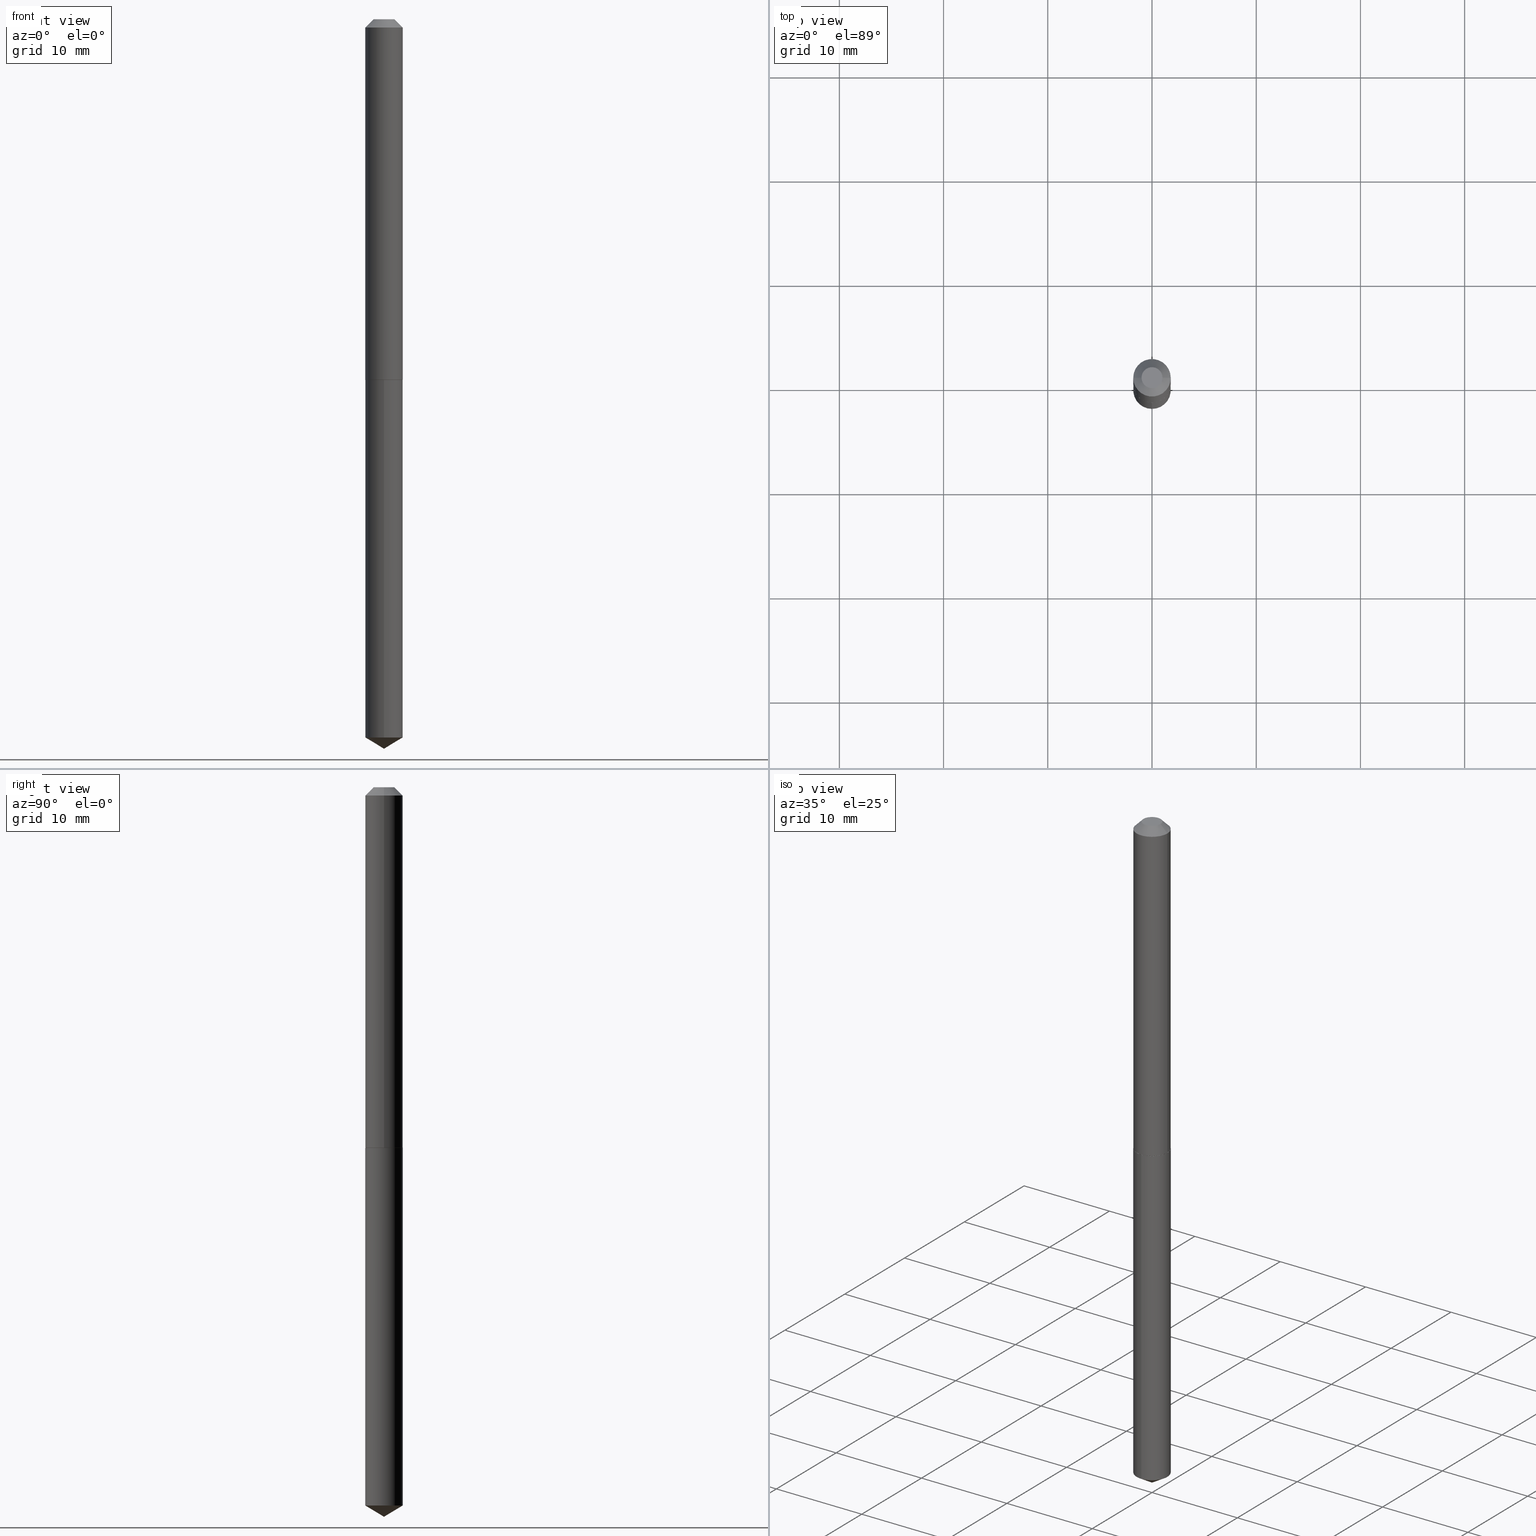
[diagram: canonical four-view strip — front | top / right | iso, engineering-drawing reading convention]
A machine part, canonical four-view strip (front | top / right | iso — engineering-drawing reading convention). The complete STEP part file that produces these views, byte-faithful:
ISO-10303-21;
HEADER;
FILE_DESCRIPTION (( 'STEP AP203' ),
    '1' );
FILE_NAME ('61072.STEP',
    '2024-04-23T03:12:56',
    ( '' ),
    ( '' ),
    'SwSTEP 2.0',
    'SolidWorks 2023',
    '' );
FILE_SCHEMA (( 'CONFIG_CONTROL_DESIGN' ));
ENDSEC;

DATA;
#1 = CIRCLE ( 'NONE', #370, 0.07084999999999999631 ) ;
#2 = SECURITY_CLASSIFICATION ( '', '', #58 ) ;
#3 = ORIENTED_EDGE ( 'NONE', *, *, #250, .T. ) ;
#4 = CC_DESIGN_DATE_AND_TIME_ASSIGNMENT ( #71, #160, ( #2 ) ) ;
#5 = CARTESIAN_POINT ( 'NONE',  ( 3.329994873382300355E-29, -4.754350139102710568E-15, -1.361699999999999910 ) ) ;
#6 = DIRECTION ( 'NONE',  ( -6.982962677686266711E-15, -1.000000000000000000, 3.468864327941571732E-15 ) ) ;
#7 = CARTESIAN_POINT ( 'NONE',  ( -1.167985862904637270E-47, 1.667574263899819573E-33, 4.776122516674677910E-19 ) ) ;
#8 = ADVANCED_FACE ( 'NONE', ( #150 ), #231, .T. ) ;
#9 = CARTESIAN_POINT ( 'NONE',  ( 3.331217607785391475E-29, -4.756095879772131283E-15, -1.362199999999999411 ) ) ;
#10 = ORIENTED_EDGE ( 'NONE', *, *, #250, .F. ) ;
#11 = DIRECTION ( 'NONE',  ( -2.445468806185136877E-29, 3.491481338843145188E-15, 1.000000000000000000 ) ) ;
#12 = VECTOR ( 'NONE', #245, 39.37007874015748143 ) ;
#13 = VERTEX_POINT ( 'NONE', #228 ) ;
#14 = VERTEX_POINT ( 'NONE', #221 ) ;
#15 = ORIENTED_EDGE ( 'NONE', *, *, #95, .T. ) ;
#16 = CC_DESIGN_PERSON_AND_ORGANIZATION_ASSIGNMENT ( #96, #64, ( #385 ) ) ;
#17 = LINE ( 'NONE', #293, #224 ) ;
#18 = VERTEX_POINT ( 'NONE', #386 ) ;
#19 = PERSON_AND_ORGANIZATION_ROLE ( 'creator' ) ;
#20 = FACE_OUTER_BOUND ( 'NONE', #288, .T. ) ;
#21 = VECTOR ( 'NONE', #299, 39.37007874015748143 ) ;
#22 = CYLINDRICAL_SURFACE ( 'NONE', #177, 0.07085000000000007958 ) ;
#23 = EDGE_CURVE ( 'NONE', #252, #306, #354, .T. ) ;
#24 = DIMENSIONAL_EXPONENTS ( 1.000000000000000000, 0.000000000000000000, 0.000000000000000000, 0.000000000000000000, 0.000000000000000000, 0.000000000000000000, 0.000000000000000000 ) ;
#25 = PERSON_AND_ORGANIZATION_ROLE ( 'design_owner' ) ;
#26 = AXIS2_PLACEMENT_3D ( 'NONE', #32, #190, #101 ) ;
#27 = COORDINATED_UNIVERSAL_TIME_OFFSET ( 5, 0, .BEHIND. ) ;
#28 = CARTESIAN_POINT ( 'NONE',  ( 0.07084999999999999631, -5.951750749809620639E-16, -0.03125000000000020123 ) ) ;
#29 = FACE_OUTER_BOUND ( 'NONE', #239, .T. ) ;
#30 = DIRECTION ( 'NONE',  ( -2.445468806185136597E-29, 3.491481338843145583E-15, 1.000000000000000000 ) ) ;
#31 = EDGE_CURVE ( 'NONE', #14, #92, #316, .T. ) ;
#32 = CARTESIAN_POINT ( 'NONE',  ( 3.331217607785391475E-29, -4.756095879772131283E-15, -1.362199999999999411 ) ) ;
#33 = CARTESIAN_POINT ( 'NONE',  ( -0.07035000000000024567, -4.253579837990788644E-15, -1.362199999999999411 ) ) ;
#34 = CARTESIAN_POINT ( 'NONE',  ( -5.839929314523186348E-48, 8.337871319499097864E-34, 2.388061258337338955E-19 ) ) ;
#35 = CALENDAR_DATE ( 2024, 22, 4 ) ;
#36 = LINE ( 'NONE', #42, #12 ) ;
#37 = AXIS2_PLACEMENT_3D ( 'NONE', #329, #303, #135 ) ;
#38 = LINE ( 'NONE', #251, #206 ) ;
#39 = COORDINATED_UNIVERSAL_TIME_OFFSET ( 5, 0, .BEHIND. ) ;
#40 = EDGE_CURVE ( 'NONE', #252, #141, #38, .T. ) ;
#41 = ORIENTED_EDGE ( 'NONE', *, *, #349, .F. ) ;
#42 = CARTESIAN_POINT ( 'NONE',  ( -0.07084999999999999631, 3.856341138752230066E-16, -0.03125000000000020123 ) ) ;
#43 = ORIENTED_EDGE ( 'NONE', *, *, #187, .T. ) ;
#44 =( NAMED_UNIT ( * ) SI_UNIT ( $, .STERADIAN. ) SOLID_ANGLE_UNIT ( ) );
#45 = AXIS2_PLACEMENT_3D ( 'NONE', #7, #256, #339 ) ;
#46 = APPROVAL_PERSON_ORGANIZATION ( #292, #234, #186 ) ;
#47 = EDGE_CURVE ( 'NONE', #279, #286, #271, .T. ) ;
#48 = APPLICATION_CONTEXT ( 'configuration controlled 3d designs of mechanical parts and assemblies' ) ;
#49 = CARTESIAN_POINT ( 'NONE',  ( -8.953980665478492260E-28, 1.278363260087393481E-13, 36.61417874015747742 ) ) ;
#50 = CARTESIAN_POINT ( 'NONE',  ( 3.331217607785392596E-29, -4.756095879772132072E-15, -1.362199999999999855 ) ) ;
#51 = LINE ( 'NONE', #197, #191 ) ;
#52 = CARTESIAN_POINT ( 'NONE',  ( -1.167985862904637270E-47, 1.667574263899819573E-33, 4.776122516674677910E-19 ) ) ;
#53 = ORIENTED_EDGE ( 'NONE', *, *, #389, .F. ) ;
#54 = AXIS2_PLACEMENT_3D ( 'NONE', #134, #243, #300 ) ;
#55 = ADVANCED_FACE ( 'NONE', ( #357 ), #104, .F. ) ;
#56 = EDGE_LOOP ( 'NONE', ( #380, #10, #262, #347 ) ) ;
#57 = EDGE_LOOP ( 'NONE', ( #3, #263 ) ) ;
#58 = SECURITY_CLASSIFICATION_LEVEL ( 'unclassified' ) ;
#59 = MANIFOLD_SOLID_BREP ( 'Body-Move/Copy2[2]', #241 ) ;
#60 = ORIENTED_EDGE ( 'NONE', *, *, #95, .F. ) ;
#61 = PERSON_AND_ORGANIZATION ( #103, #167 ) ;
#62 = MANIFOLD_SOLID_BREP ( 'Body-Move/Copy2[1]', #105 ) ;
#63 = AXIS2_PLACEMENT_3D ( 'NONE', #246, #30, #97 ) ;
#64 = PERSON_AND_ORGANIZATION_ROLE ( 'creator' ) ;
#65 = CC_DESIGN_PERSON_AND_ORGANIZATION_ASSIGNMENT ( #267, #319, ( #385 ) ) ;
#66 = DIRECTION ( 'NONE',  ( 0.7071067811867527420, -2.468850131084406312E-15, 0.7071067811863422925 ) ) ;
#67 = PERSON_AND_ORGANIZATION ( #103, #167 ) ;
#68 =( CONVERSION_BASED_UNIT ( 'INCH', #165 ) LENGTH_UNIT ( ) NAMED_UNIT ( #24 ) );
#69 = PLANE ( 'NONE',  #308 ) ;
#70 = CARTESIAN_POINT ( 'NONE',  ( 5.034195282860974170E-16, 0.07084999999999523623, -1.362200000000000077 ) ) ;
#71 = DATE_AND_TIME ( #364, #158 ) ;
#72 = VERTEX_POINT ( 'NONE', #70 ) ;
#73 = EDGE_CURVE ( 'NONE', #72, #92, #126, .T. ) ;
#74 = LOCAL_TIME ( 23, 12, 55.00000000000000000, #39 ) ;
#75 = AXIS2_PLACEMENT_3D ( 'NONE', #383, #107, #6 ) ;
#76 = DIRECTION ( 'NONE',  ( 1.000000000000000000, 0.000000000000000000, 0.000000000000000000 ) ) ;
#77 = SHAPE_DEFINITION_REPRESENTATION ( #346, #222 ) ;
#78 = ORIENTED_EDGE ( 'NONE', *, *, #229, .T. ) ;
#79 = EDGE_CURVE ( 'NONE', #368, #286, #36, .T. ) ;
#80 = DIRECTION ( 'NONE',  ( -6.982962677686265133E-15, -1.000000000000000000, 0.000000000000000000 ) ) ;
#81 = DIRECTION ( 'NONE',  ( -2.445468806185136597E-29, 3.491481338843145583E-15, 1.000000000000000000 ) ) ;
#82 = CIRCLE ( 'NONE', #289, 0.07035000000000024567 ) ;
#83 = LOCAL_TIME ( 23, 12, 55.00000000000000000, #27 ) ;
#84 = LINE ( 'NONE', #203, #361 ) ;
#85 = CARTESIAN_POINT ( 'NONE',  ( -4.947429057140386300E-16, -0.07085000000000474252, -1.362199999999999411 ) ) ;
#86 = ADVANCED_FACE ( 'NONE', ( #99 ), #219, .T. ) ;
#87 = AXIS2_PLACEMENT_3D ( 'NONE', #34, #356, #220 ) ;
#88 = CARTESIAN_POINT ( 'NONE',  ( 3.331217607785392596E-29, -4.756095879772132072E-15, -1.362199999999999855 ) ) ;
#89 = ORIENTED_EDGE ( 'NONE', *, *, #229, .F. ) ;
#90 = DIRECTION ( 'NONE',  ( -6.982962677686265133E-15, -1.000000000000000000, 0.000000000000000000 ) ) ;
#91 = PRODUCT_RELATED_PRODUCT_CATEGORY ( 'detail', '', ( #112 ) ) ;
#92 = VERTEX_POINT ( 'NONE', #85 ) ;
#93 = AXIS2_PLACEMENT_3D ( 'NONE', #258, #284, #80 ) ;
#94 = DIRECTION ( 'NONE',  ( -1.000000000000000000, 6.982962677686268288E-15, 0.000000000000000000 ) ) ;
#95 = EDGE_CURVE ( 'NONE', #306, #279, #51, .T. ) ;
#96 = PERSON_AND_ORGANIZATION ( #103, #167 ) ;
#97 = DIRECTION ( 'NONE',  ( 1.000000000000000000, -6.982962677686261189E-15, 0.000000000000000000 ) ) ;
#98 = CONICAL_SURFACE ( 'NONE', #63, 0.07085000000000016285, 0.7853981633977384913 ) ;
#99 = FACE_OUTER_BOUND ( 'NONE', #211, .T. ) ;
#100 = CARTESIAN_POINT ( 'NONE',  ( 7.642090019328601786E-31, -1.091087918388490144E-16, -0.03125000000000020123 ) ) ;
#101 = DIRECTION ( 'NONE',  ( 1.000000000000000000, -6.982962677686265922E-15, 4.876176775795935793E-29 ) ) ;
#102 = DIRECTION ( 'NONE',  ( -2.445494471656019895E-29, 3.491444584428052724E-15, 1.000000000000000000 ) ) ;
#103 = PERSON ( 'UNSPECIFIED', 'UNSPECIFIED', 'UNSPECIFIED', ('UNSPECIFIED'), ('UNSPECIFIED'), ('UNSPECIFIED') ) ;
#104 = PLANE ( 'NONE',  #26 ) ;
#105 = CLOSED_SHELL ( 'NONE', ( #8, #382, #144, #86, #225 ) ) ;
#106 = ORIENTED_EDGE ( 'NONE', *, *, #296, .T. ) ;
#107 = DIRECTION ( 'NONE',  ( -2.445494471656019615E-29, 3.491444584428053118E-15, 1.000000000000000000 ) ) ;
#108 = CARTESIAN_POINT ( 'NONE',  ( 3.331217607785392596E-29, -4.756095879772132072E-15, -1.362199999999999855 ) ) ;
#109 = EDGE_CURVE ( 'NONE', #279, #141, #157, .T. ) ;
#110 = APPLICATION_PROTOCOL_DEFINITION ( 'international standard', 'config_control_design', 1994, #136 ) ;
#111 = DIRECTION ( 'NONE',  ( 1.000000000000000000, -6.982962677686261189E-15, 0.000000000000000000 ) ) ;
#112 = PRODUCT ( '61072', '61072', '', ( #143 ) ) ;
#113 = DIRECTION ( 'NONE',  ( 2.445468806185136597E-29, -3.491481338843145583E-15, -1.000000000000000000 ) ) ;
#114 = DIRECTION ( 'NONE',  ( 1.000000000000000000, -6.982962677686273021E-15, 0.000000000000000000 ) ) ;
#115 = CONICAL_SURFACE ( 'NONE', #330, 65.52281426576885792, 1.029744258676657420 ) ;
#116 = CYLINDRICAL_SURFACE ( 'NONE', #237, 0.07085000000000007958 ) ;
#117 = FACE_OUTER_BOUND ( 'NONE', #240, .T. ) ;
#118 = EDGE_LOOP ( 'NONE', ( #315, #41 ) ) ;
#119 = ORIENTED_EDGE ( 'NONE', *, *, #40, .T. ) ;
#120 = CARTESIAN_POINT ( 'NONE',  ( 0.03959999999999999631, -4.334253978463574315E-16, 4.776122516699494480E-19 ) ) ;
#121 = ADVANCED_FACE ( 'NONE', ( #367 ), #326, .T. ) ;
#122 = EDGE_LOOP ( 'NONE', ( #60, #377, #119, #336 ) ) ;
#123 = CARTESIAN_POINT ( 'NONE',  ( 5.034195282860641863E-16, 0.07084999999999523623, -1.362200000000000077 ) ) ;
#124 = ORIENTED_EDGE ( 'NONE', *, *, #133, .T. ) ;
#125 = DIRECTION ( 'NONE',  ( -5.985567269335953901E-15, -0.8571673007021120005, 0.5150380749100547106 ) ) ;
#126 = CIRCLE ( 'NONE', #37, 0.07084999999999999631 ) ;
#127 = VECTOR ( 'NONE', #366, 39.37007874015748143 ) ;
#128 = APPLICATION_PROTOCOL_DEFINITION ( 'international standard', 'config_control_design', 1994, #48 ) ;
#129 = CALENDAR_DATE ( 2024, 22, 4 ) ;
#130 = CARTESIAN_POINT ( 'NONE',  ( 3.329994873382300355E-29, -4.754350139102710568E-15, -1.361699999999999910 ) ) ;
#131 = VECTOR ( 'NONE', #184, 39.37007874015748143 ) ;
#132 = DATE_AND_TIME ( #129, #201 ) ;
#133 = EDGE_CURVE ( 'NONE', #14, #18, #146, .T. ) ;
#134 = CARTESIAN_POINT ( 'NONE',  ( 7.642090019328601786E-31, -1.091087918388490144E-16, -0.03125000000000020123 ) ) ;
#135 = DIRECTION ( 'NONE',  ( -6.982962677686265133E-15, -1.000000000000000000, 3.855819327684210983E-15 ) ) ;
#136 = APPLICATION_CONTEXT ( 'configuration controlled 3d designs of mechanical parts and assemblies' ) ;
#137 = ORIENTED_EDGE ( 'NONE', *, *, #345, .F. ) ;
#138 = ADVANCED_FACE ( 'NONE', ( #117 ), #253, .T. ) ;
#139 =( LENGTH_UNIT ( ) NAMED_UNIT ( * ) SI_UNIT ( $, .METRE. ) );
#140 = ORIENTED_EDGE ( 'NONE', *, *, #133, .F. ) ;
#141 = VERTEX_POINT ( 'NONE', #309 ) ;
#142 = AXIS2_PLACEMENT_3D ( 'NONE', #353, #344, #90 ) ;
#143 = MECHANICAL_CONTEXT ( 'NONE', #136, 'mechanical' ) ;
#144 = ADVANCED_FACE ( 'NONE', ( #342 ), #115, .T. ) ;
#145 = DIRECTION ( 'NONE',  ( -0.7071067811867527420, 7.493145998871095689E-15, 0.7071067811863422925 ) ) ;
#146 = CIRCLE ( 'NONE', #93, 0.07084999999999999631 ) ;
#147 = DIRECTION ( 'NONE',  ( -2.445468806185136597E-29, 3.491481338843145583E-15, 1.000000000000000000 ) ) ;
#148 = EDGE_LOOP ( 'NONE', ( #53, #373, #175 ) ) ;
#149 = EDGE_CURVE ( 'NONE', #235, #368, #152, .T. ) ;
#150 = FACE_OUTER_BOUND ( 'NONE', #227, .T. ) ;
#151 = CALENDAR_DATE ( 2024, 22, 4 ) ;
#152 = CIRCLE ( 'NONE', #45, 0.03959999999999999631 ) ;
#153 = ORIENTED_EDGE ( 'NONE', *, *, #345, .T. ) ;
#154 = DIRECTION ( 'NONE',  ( -2.445468806185136597E-29, 3.491481338843145583E-15, 1.000000000000000000 ) ) ;
#155 = APPROVAL_STATUS ( 'not_yet_approved' ) ;
#156 = CC_DESIGN_PERSON_AND_ORGANIZATION_ASSIGNMENT ( #214, #25, ( #112 ) ) ;
#157 = CIRCLE ( 'NONE', #375, 0.07085000000000016285 ) ;
#158 = LOCAL_TIME ( 23, 12, 55.00000000000000000, #304 ) ;
#159 = DATE_AND_TIME ( #182, #178 ) ;
#160 = DATE_TIME_ROLE ( 'classification_date' ) ;
#161 = CARTESIAN_POINT ( 'NONE',  ( 7.642090019328601786E-31, -1.091087918388490144E-16, -0.03125000000000020123 ) ) ;
#162 = EDGE_CURVE ( 'NONE', #205, #286, #280, .T. ) ;
#163 = APPROVAL_STATUS ( 'not_yet_approved' ) ;
#164 = APPROVAL_DATE_TIME ( #301, #334 ) ;
#165 = LENGTH_MEASURE_WITH_UNIT ( LENGTH_MEASURE( 0.02539999999999999897 ), #139 );
#166 = DIRECTION ( 'NONE',  ( -6.982962677686265133E-15, -1.000000000000000000, 3.855819327684210983E-15 ) ) ;
#167 = ORGANIZATION ( 'UNSPECIFIED', 'UNSPECIFIED', '' ) ;
#168 = DIRECTION ( 'NONE',  ( -2.445494471656019615E-29, 3.491444584428053118E-15, 1.000000000000000000 ) ) ;
#169 = ORIENTED_EDGE ( 'NONE', *, *, #79, .F. ) ;
#170 = ORIENTED_EDGE ( 'NONE', *, *, #23, .T. ) ;
#171 = ORIENTED_EDGE ( 'NONE', *, *, #181, .F. ) ;
#172 = CARTESIAN_POINT ( 'NONE',  ( -0.07085000000000016285, -4.250930610816678232E-15, -1.361699999999999910 ) ) ;
#173 = ORIENTED_EDGE ( 'NONE', *, *, #389, .T. ) ;
#174 = DIRECTION ( 'NONE',  ( -2.445494471656019615E-29, 3.491444584428053118E-15, 1.000000000000000000 ) ) ;
#175 = ORIENTED_EDGE ( 'NONE', *, *, #187, .F. ) ;
#176 = PERSON_AND_ORGANIZATION ( #103, #167 ) ;
#177 = AXIS2_PLACEMENT_3D ( 'NONE', #242, #154, #268 ) ;
#178 = LOCAL_TIME ( 23, 12, 55.00000000000000000, #325 ) ;
#179 = APPROVAL_DATE_TIME ( #132, #202 ) ;
#180 = DIRECTION ( 'NONE',  ( -2.445494471656019615E-29, 3.491444584428053118E-15, 1.000000000000000000 ) ) ;
#181 = EDGE_CURVE ( 'NONE', #18, #72, #351, .T. ) ;
#182 = CALENDAR_DATE ( 2024, 22, 4 ) ;
#183 = DIRECTION ( 'NONE',  ( 6.982962677686265922E-15, 1.000000000000000000, -3.491444584428052724E-15 ) ) ;
#184 = DIRECTION ( 'NONE',  ( -2.445494471656019895E-29, 3.491444584428052724E-15, 1.000000000000000000 ) ) ;
#185 = CIRCLE ( 'NONE', #274, 0.07084999999999999631 ) ;
#186 = APPROVAL_ROLE ( '' ) ;
#187 = EDGE_CURVE ( 'NONE', #18, #14, #337, .T. ) ;
#188 = DESIGN_CONTEXT ( 'detailed design', #48, 'design' ) ;
#189 = CARTESIAN_POINT ( 'NONE',  ( 6.739538827579076702E-29, -9.622072130225270462E-15, -2.755900000000000016 ) ) ;
#190 = DIRECTION ( 'NONE',  ( -2.438088387897960049E-29, 3.491481338843145188E-15, 1.000000000000000000 ) ) ;
#191 = VECTOR ( 'NONE', #145, 39.37007874015748143 ) ;
#192 = CC_DESIGN_APPROVAL ( #202, ( #362 ) ) ;
#193 = LINE ( 'NONE', #189, #127 ) ;
#194 = APPROVAL_ROLE ( '' ) ;
#195 = ORIENTED_EDGE ( 'NONE', *, *, #109, .T. ) ;
#196 = ADVANCED_FACE ( 'NONE', ( #270 ), #217, .T. ) ;
#197 = CARTESIAN_POINT ( 'NONE',  ( -0.07085000000000016285, -4.250930610816678232E-15, -1.361699999999999910 ) ) ;
#198 = EDGE_LOOP ( 'NONE', ( #311, #233 ) ) ;
#199 = DIRECTION ( 'NONE',  ( 1.000000000000000000, -6.982962677686261189E-15, 0.000000000000000000 ) ) ;
#200 = DIRECTION ( 'NONE',  ( -2.445468806185136597E-29, 3.491481338843145583E-15, 1.000000000000000000 ) ) ;
#201 = LOCAL_TIME ( 23, 12, 55.00000000000000000, #238 ) ;
#202 = APPROVAL ( #350, 'UNSPECIFIED' ) ;
#203 = CARTESIAN_POINT ( 'NONE',  ( 6.739468291427951643E-29, -9.622172263953749861E-15, -2.755900000000000016 ) ) ;
#204 = ORIENTED_EDGE ( 'NONE', *, *, #355, .F. ) ;
#205 = VERTEX_POINT ( 'NONE', #285 ) ;
#206 = VECTOR ( 'NONE', #66, 39.37007874015748143 ) ;
#207 = AXIS2_PLACEMENT_3D ( 'NONE', #223, #331, #76 ) ;
#208 = DIRECTION ( 'NONE',  ( 2.445494471656019615E-29, -3.491444584428052724E-15, -1.000000000000000000 ) ) ;
#209 = ORIENTED_EDGE ( 'NONE', *, *, #162, .F. ) ;
#210 = LINE ( 'NONE', #28, #21 ) ;
#211 = EDGE_LOOP ( 'NONE', ( #171, #43, #281, #236 ) ) ;
#212 = VECTOR ( 'NONE', #249, 39.37007874015748143 ) ;
#213 = ADVANCED_FACE ( 'NONE', ( #215 ), #98, .T. ) ;
#214 = PERSON_AND_ORGANIZATION ( #103, #167 ) ;
#215 = FACE_OUTER_BOUND ( 'NONE', #122, .T. ) ;
#216 = ADVANCED_FACE ( 'NONE', ( #302 ), #323, .F. ) ;
#217 = CONICAL_SURFACE ( 'NONE', #384, 0.07084999999999999631, 0.7853981633974452814 ) ;
#218 = CC_DESIGN_APPROVAL ( #334, ( #2 ) ) ;
#219 = CYLINDRICAL_SURFACE ( 'NONE', #265, 0.07084999999999999631 ) ;
#220 = DIRECTION ( 'NONE',  ( -1.000000000000000000, 6.982962677686265922E-15, -4.876176775795935793E-29 ) ) ;
#221 = CARTESIAN_POINT ( 'NONE',  ( -4.947429057140053992E-16, -0.07085000000000944709, -2.713329025141897777 ) ) ;
#222 = ADVANCED_BREP_SHAPE_REPRESENTATION ( '61072', ( #62, #59, #207 ), #266 ) ;
#223 = CARTESIAN_POINT ( 'NONE',  ( 0.000000000000000000, 0.000000000000000000, 0.000000000000000000 ) ) ;
#224 = VECTOR ( 'NONE', #11, 39.37007874015748143 ) ;
#225 = ADVANCED_FACE ( 'NONE', ( #328 ), #69, .F. ) ;
#226 = PERSON_AND_ORGANIZATION_ROLE ( 'classification_officer' ) ;
#227 = EDGE_LOOP ( 'NONE', ( #124, #260, #204, #277 ) ) ;
#228 = CARTESIAN_POINT ( 'NONE',  ( 6.739538214436825030E-29, -9.622072130225270462E-15, -2.755900000000000016 ) ) ;
#229 = EDGE_CURVE ( 'NONE', #141, #205, #17, .T. ) ;
#230 = VECTOR ( 'NONE', #102, 39.37007874015748143 ) ;
#231 = CYLINDRICAL_SURFACE ( 'NONE', #305, 0.07084999999999999631 ) ;
#232 = DIRECTION ( 'NONE',  ( -1.000000000000000000, 6.982962677686268288E-15, 0.000000000000000000 ) ) ;
#233 = ORIENTED_EDGE ( 'NONE', *, *, #73, .T. ) ;
#234 = APPROVAL ( #155, 'UNSPECIFIED' ) ;
#235 = VERTEX_POINT ( 'NONE', #120 ) ;
#236 = ORIENTED_EDGE ( 'NONE', *, *, #73, .F. ) ;
#237 = AXIS2_PLACEMENT_3D ( 'NONE', #261, #372, #244 ) ;
#238 = COORDINATED_UNIVERSAL_TIME_OFFSET ( 5, 0, .BEHIND. ) ;
#239 = EDGE_LOOP ( 'NONE', ( #273, #173, #140 ) ) ;
#240 = EDGE_LOOP ( 'NONE', ( #170, #15, #137, #321 ) ) ;
#241 = CLOSED_SHELL ( 'NONE', ( #196, #282, #138, #55, #213, #324, #121, #216 ) ) ;
#242 = CARTESIAN_POINT ( 'NONE',  ( 0.000000000000000000, 0.000000000000000000, 0.000000000000000000 ) ) ;
#243 = DIRECTION ( 'NONE',  ( -2.445468806185136597E-29, 3.491481338843145583E-15, 1.000000000000000000 ) ) ;
#244 = DIRECTION ( 'NONE',  ( 1.000000000000000000, -6.982962677686266711E-15, 4.876176775795935232E-29 ) ) ;
#245 = DIRECTION ( 'NONE',  ( -0.7071067811865453523, 2.468850131082234184E-15, -0.7071067811865496822 ) ) ;
#246 = CARTESIAN_POINT ( 'NONE',  ( 3.329994873382300355E-29, -4.754350139102710568E-15, -1.361699999999999910 ) ) ;
#247 = AXIS2_PLACEMENT_3D ( 'NONE', #130, #81, #335 ) ;
#248 = CC_DESIGN_APPROVAL ( #234, ( #385 ) ) ;
#249 = DIRECTION ( 'NONE',  ( -2.445468806185136877E-29, 3.491481338843145188E-15, 1.000000000000000000 ) ) ;
#250 = EDGE_CURVE ( 'NONE', #368, #235, #322, .T. ) ;
#251 = CARTESIAN_POINT ( 'NONE',  ( 0.07085000000000016285, -5.249093044816783612E-15, -1.361699999999999910 ) ) ;
#252 = VERTEX_POINT ( 'NONE', #341 ) ;
#253 = CONICAL_SURFACE ( 'NONE', #348, 0.07085000000000016285, 0.7853981633977384913 ) ;
#254 = CC_DESIGN_SECURITY_CLASSIFICATION ( #2, ( #385 ) ) ;
#255 = CC_DESIGN_DATE_AND_TIME_ASSIGNMENT ( #159, #378, ( #362 ) ) ;
#256 = DIRECTION ( 'NONE',  ( -2.445468806185136597E-29, 3.491481338843145583E-15, 1.000000000000000000 ) ) ;
#257 = DIRECTION ( 'NONE',  ( -2.445468806185136597E-29, 3.491481338843145583E-15, 1.000000000000000000 ) ) ;
#258 = CARTESIAN_POINT ( 'NONE',  ( 6.635396169263890678E-29, -9.473487997467366405E-15, -2.713329025141897777 ) ) ;
#259 = CIRCLE ( 'NONE', #247, 0.07085000000000016285 ) ;
#260 = ORIENTED_EDGE ( 'NONE', *, *, #181, .T. ) ;
#261 = CARTESIAN_POINT ( 'NONE',  ( 0.000000000000000000, 0.000000000000000000, 0.000000000000000000 ) ) ;
#262 = ORIENTED_EDGE ( 'NONE', *, *, #79, .T. ) ;
#263 = ORIENTED_EDGE ( 'NONE', *, *, #149, .T. ) ;
#264 = CARTESIAN_POINT ( 'NONE',  ( 3.331217607785392596E-29, -4.756095879772132072E-15, -1.362199999999999855 ) ) ;
#265 = AXIS2_PLACEMENT_3D ( 'NONE', #108, #174, #363 ) ;
#266 =( GEOMETRIC_REPRESENTATION_CONTEXT ( 3 ) GLOBAL_UNCERTAINTY_ASSIGNED_CONTEXT ( ( #340 ) ) GLOBAL_UNIT_ASSIGNED_CONTEXT ( ( #68, #358, #44 ) ) REPRESENTATION_CONTEXT ( 'NONE', 'WORKASPACE' ) );
#267 = PERSON_AND_ORGANIZATION ( #103, #167 ) ;
#268 = DIRECTION ( 'NONE',  ( 1.000000000000000000, -6.982962677686266711E-15, 4.876176775795935232E-29 ) ) ;
#269 = AXIS2_PLACEMENT_3D ( 'NONE', #52, #374, #287 ) ;
#270 = FACE_OUTER_BOUND ( 'NONE', #332, .T. ) ;
#271 = LINE ( 'NONE', #359, #212 ) ;
#272 = DIRECTION ( 'NONE',  ( -2.445468806185136597E-29, 3.491481338843145583E-15, 1.000000000000000000 ) ) ;
#273 = ORIENTED_EDGE ( 'NONE', *, *, #275, .F. ) ;
#274 = AXIS2_PLACEMENT_3D ( 'NONE', #161, #272, #320 ) ;
#275 = EDGE_CURVE ( 'NONE', #13, #14, #84, .T. ) ;
#276 = DIRECTION ( 'NONE',  ( -6.982962677686266711E-15, -1.000000000000000000, 3.468864327941571732E-15 ) ) ;
#277 = ORIENTED_EDGE ( 'NONE', *, *, #31, .F. ) ;
#278 = CARTESIAN_POINT ( 'NONE',  ( 3.331217607785391475E-29, -4.756095879772131283E-15, -1.362199999999999411 ) ) ;
#279 = VERTEX_POINT ( 'NONE', #172 ) ;
#280 = CIRCLE ( 'NONE', #54, 0.07084999999999999631 ) ;
#281 = ORIENTED_EDGE ( 'NONE', *, *, #31, .T. ) ;
#282 = ADVANCED_FACE ( 'NONE', ( #20 ), #116, .T. ) ;
#283 = ORIENTED_EDGE ( 'NONE', *, *, #149, .F. ) ;
#284 = DIRECTION ( 'NONE',  ( -2.445494471656019615E-29, 3.491444584428053118E-15, 1.000000000000000000 ) ) ;
#285 = CARTESIAN_POINT ( 'NONE',  ( 0.07084999999999999631, -6.038516975529210600E-16, -0.03125000000000020123 ) ) ;
#286 = VERTEX_POINT ( 'NONE', #379 ) ;
#287 = DIRECTION ( 'NONE',  ( 1.000000000000000000, -6.982962677686266711E-15, 4.876174577746486049E-29 ) ) ;
#288 = EDGE_LOOP ( 'NONE', ( #153, #365, #209, #89 ) ) ;
#289 = AXIS2_PLACEMENT_3D ( 'NONE', #9, #200, #310 ) ;
#290 = PERSON_AND_ORGANIZATION ( #103, #167 ) ;
#291 = FACE_OUTER_BOUND ( 'NONE', #317, .T. ) ;
#292 = PERSON_AND_ORGANIZATION ( #103, #167 ) ;
#293 = CARTESIAN_POINT ( 'NONE',  ( 0.07085000000000007958, -4.947429057140725510E-16, 3.454771245651424113E-30 ) ) ;
#294 = APPROVAL_ROLE ( '' ) ;
#295 = AXIS2_PLACEMENT_3D ( 'NONE', #312, #113, #232 ) ;
#296 = EDGE_CURVE ( 'NONE', #235, #205, #210, .T. ) ;
#297 = DIRECTION ( 'NONE',  ( 2.445468806185136597E-29, -3.491481338843145583E-15, -1.000000000000000000 ) ) ;
#298 = CARTESIAN_POINT ( 'NONE',  ( -4.947429057140386300E-16, -0.07085000000000474252, -1.362199999999999411 ) ) ;
#299 = DIRECTION ( 'NONE',  ( 0.7071067811865453523, -7.319954787623248157E-15, -0.7071067811865496822 ) ) ;
#300 = DIRECTION ( 'NONE',  ( 1.000000000000000000, -6.982962677686268288E-15, 0.000000000000000000 ) ) ;
#301 = DATE_AND_TIME ( #35, #74 ) ;
#302 = FACE_OUTER_BOUND ( 'NONE', #57, .T. ) ;
#303 = DIRECTION ( 'NONE',  ( -2.445494471656019615E-29, 3.491444584428053118E-15, 1.000000000000000000 ) ) ;
#304 = COORDINATED_UNIVERSAL_TIME_OFFSET ( 5, 0, .BEHIND. ) ;
#305 = AXIS2_PLACEMENT_3D ( 'NONE', #264, #390, #166 ) ;
#306 = VERTEX_POINT ( 'NONE', #33 ) ;
#307 = DIRECTION ( 'NONE',  ( -2.445468806185136597E-29, 3.491481338843145583E-15, 1.000000000000000000 ) ) ;
#308 = AXIS2_PLACEMENT_3D ( 'NONE', #88, #208, #183 ) ;
#309 = CARTESIAN_POINT ( 'NONE',  ( 0.07085000000000016285, -5.249093044816783612E-15, -1.361699999999999910 ) ) ;
#310 = DIRECTION ( 'NONE',  ( 1.000000000000000000, -6.982962677686273021E-15, 0.000000000000000000 ) ) ;
#311 = ORIENTED_EDGE ( 'NONE', *, *, #355, .T. ) ;
#312 = CARTESIAN_POINT ( 'NONE',  ( 7.642090019328601786E-31, -1.091087918388490144E-16, -0.03125000000000020123 ) ) ;
#313 = EDGE_CURVE ( 'NONE', #286, #205, #185, .T. ) ;
#314 = AXIS2_PLACEMENT_3D ( 'NONE', #278, #257, #114 ) ;
#315 = ORIENTED_EDGE ( 'NONE', *, *, #23, .F. ) ;
#316 = LINE ( 'NONE', #298, #230 ) ;
#317 = EDGE_LOOP ( 'NONE', ( #371, #195, #78, #360 ) ) ;
#318 = CC_DESIGN_PERSON_AND_ORGANIZATION_ASSIGNMENT ( #290, #19, ( #362 ) ) ;
#319 = PERSON_AND_ORGANIZATION_ROLE ( 'design_supplier' ) ;
#320 = DIRECTION ( 'NONE',  ( 1.000000000000000000, -6.982962677686268288E-15, 0.000000000000000000 ) ) ;
#321 = ORIENTED_EDGE ( 'NONE', *, *, #40, .F. ) ;
#322 = CIRCLE ( 'NONE', #269, 0.03959999999999999631 ) ;
#323 = PLANE ( 'NONE',  #87 ) ;
#324 = ADVANCED_FACE ( 'NONE', ( #291 ), #22, .T. ) ;
#325 = COORDINATED_UNIVERSAL_TIME_OFFSET ( 5, 0, .BEHIND. ) ;
#326 = CONICAL_SURFACE ( 'NONE', #295, 0.07084999999999999631, 0.7853981633974452814 ) ;
#327 = CONICAL_SURFACE ( 'NONE', #75, 65.52281426576885792, 1.029744258676657420 ) ;
#328 = FACE_OUTER_BOUND ( 'NONE', #198, .T. ) ;
#329 = CARTESIAN_POINT ( 'NONE',  ( 3.331217607785392596E-29, -4.756095879772132072E-15, -1.362199999999999855 ) ) ;
#330 = AXIS2_PLACEMENT_3D ( 'NONE', #49, #168, #276 ) ;
#331 = DIRECTION ( 'NONE',  ( 0.000000000000000000, 0.000000000000000000, 1.000000000000000000 ) ) ;
#332 = EDGE_LOOP ( 'NONE', ( #283, #106, #333, #169 ) ) ;
#333 = ORIENTED_EDGE ( 'NONE', *, *, #162, .T. ) ;
#334 = APPROVAL ( #163, 'UNSPECIFIED' ) ;
#335 = DIRECTION ( 'NONE',  ( 1.000000000000000000, -6.982962677686261189E-15, 0.000000000000000000 ) ) ;
#336 = ORIENTED_EDGE ( 'NONE', *, *, #109, .F. ) ;
#337 = CIRCLE ( 'NONE', #142, 0.07084999999999999631 ) ;
#338 = APPROVAL_PERSON_ORGANIZATION ( #61, #202, #294 ) ;
#339 = DIRECTION ( 'NONE',  ( 1.000000000000000000, -6.982962677686266711E-15, 4.876174577746486049E-29 ) ) ;
#340 = UNCERTAINTY_MEASURE_WITH_UNIT (LENGTH_MEASURE( 1.000000000000000082E-05 ), #68, 'distance_accuracy_value', 'NONE');
#341 = CARTESIAN_POINT ( 'NONE',  ( 0.07035000000000024567, -5.247347304147362109E-15, -1.362199999999999411 ) ) ;
#342 = FACE_OUTER_BOUND ( 'NONE', #148, .T. ) ;
#343 = CARTESIAN_POINT ( 'NONE',  ( 3.329994873382300355E-29, -4.754350139102710568E-15, -1.361699999999999910 ) ) ;
#344 = DIRECTION ( 'NONE',  ( -2.445494471656019615E-29, 3.491444584428053118E-15, 1.000000000000000000 ) ) ;
#345 = EDGE_CURVE ( 'NONE', #141, #279, #259, .T. ) ;
#346 = PRODUCT_DEFINITION_SHAPE ( 'NONE', 'NONE',  #362 ) ;
#347 = ORIENTED_EDGE ( 'NONE', *, *, #313, .T. ) ;
#348 = AXIS2_PLACEMENT_3D ( 'NONE', #343, #307, #199 ) ;
#349 = EDGE_CURVE ( 'NONE', #306, #252, #82, .T. ) ;
#350 = APPROVAL_STATUS ( 'not_yet_approved' ) ;
#351 = LINE ( 'NONE', #123, #131 ) ;
#352 = APPROVAL_DATE_TIME ( #388, #234 ) ;
#353 = CARTESIAN_POINT ( 'NONE',  ( 6.635396169263890678E-29, -9.473487997467366405E-15, -2.713329025141897777 ) ) ;
#354 = CIRCLE ( 'NONE', #314, 0.07035000000000024567 ) ;
#355 = EDGE_CURVE ( 'NONE', #92, #72, #1, .T. ) ;
#356 = DIRECTION ( 'NONE',  ( 2.438088387897960049E-29, -3.491481338843145188E-15, -1.000000000000000000 ) ) ;
#357 = FACE_OUTER_BOUND ( 'NONE', #118, .T. ) ;
#358 =( NAMED_UNIT ( * ) PLANE_ANGLE_UNIT ( ) SI_UNIT ( $, .RADIAN. ) );
#359 = CARTESIAN_POINT ( 'NONE',  ( -0.07085000000000007958, 5.034195282860315471E-16, -3.485065511445604472E-30 ) ) ;
#360 = ORIENTED_EDGE ( 'NONE', *, *, #313, .F. ) ;
#361 = VECTOR ( 'NONE', #125, 39.37007874015748143 ) ;
#362 = PRODUCT_DEFINITION ( 'UNKNOWN', '', #385, #188 ) ;
#363 = DIRECTION ( 'NONE',  ( -6.982962677686265133E-15, -1.000000000000000000, 3.855819327684210983E-15 ) ) ;
#364 = CALENDAR_DATE ( 2024, 22, 4 ) ;
#365 = ORIENTED_EDGE ( 'NONE', *, *, #47, .T. ) ;
#366 = DIRECTION ( 'NONE',  ( 6.090539988449789480E-15, 0.8571673007021155533, 0.5150380749100487154 ) ) ;
#367 = FACE_OUTER_BOUND ( 'NONE', #56, .T. ) ;
#368 = VERTEX_POINT ( 'NONE', #387 ) ;
#369 = CC_DESIGN_PERSON_AND_ORGANIZATION_ASSIGNMENT ( #176, #226, ( #2 ) ) ;
#370 = AXIS2_PLACEMENT_3D ( 'NONE', #50, #180, #381 ) ;
#371 = ORIENTED_EDGE ( 'NONE', *, *, #47, .F. ) ;
#372 = DIRECTION ( 'NONE',  ( -2.445468806185136597E-29, 3.491481338843145583E-15, 1.000000000000000000 ) ) ;
#373 = ORIENTED_EDGE ( 'NONE', *, *, #275, .T. ) ;
#374 = DIRECTION ( 'NONE',  ( -2.445468806185136597E-29, 3.491481338843145583E-15, 1.000000000000000000 ) ) ;
#375 = AXIS2_PLACEMENT_3D ( 'NONE', #5, #147, #111 ) ;
#376 = APPROVAL_PERSON_ORGANIZATION ( #67, #334, #194 ) ;
#377 = ORIENTED_EDGE ( 'NONE', *, *, #349, .T. ) ;
#378 = DATE_TIME_ROLE ( 'creation_date' ) ;
#379 = CARTESIAN_POINT ( 'NONE',  ( -0.07084999999999999631, -1.928309937184747104E-15, -0.03125000000000020123 ) ) ;
#380 = ORIENTED_EDGE ( 'NONE', *, *, #296, .F. ) ;
#381 = DIRECTION ( 'NONE',  ( -6.982962677686265133E-15, -1.000000000000000000, 3.855819327684210983E-15 ) ) ;
#382 = ADVANCED_FACE ( 'NONE', ( #29 ), #327, .T. ) ;
#383 = CARTESIAN_POINT ( 'NONE',  ( -8.953980665478492260E-28, 1.278363260087393481E-13, 36.61417874015747742 ) ) ;
#384 = AXIS2_PLACEMENT_3D ( 'NONE', #100, #297, #94 ) ;
#385 = PRODUCT_DEFINITION_FORMATION_WITH_SPECIFIED_SOURCE ( 'ANY', '', #112, .NOT_KNOWN. ) ;
#386 = CARTESIAN_POINT ( 'NONE',  ( 5.034195282860970226E-16, 0.07084999999999049003, -2.713329025141897777 ) ) ;
#387 = CARTESIAN_POINT ( 'NONE',  ( -0.03959999999999999631, 3.310797179557995903E-16, 4.776122516653433940E-19 ) ) ;
#388 = DATE_AND_TIME ( #151, #83 ) ;
#389 = EDGE_CURVE ( 'NONE', #13, #18, #193, .T. ) ;
#390 = DIRECTION ( 'NONE',  ( -2.445494471656019615E-29, 3.491444584428053118E-15, 1.000000000000000000 ) ) ;
ENDSEC;
END-ISO-10303-21;
